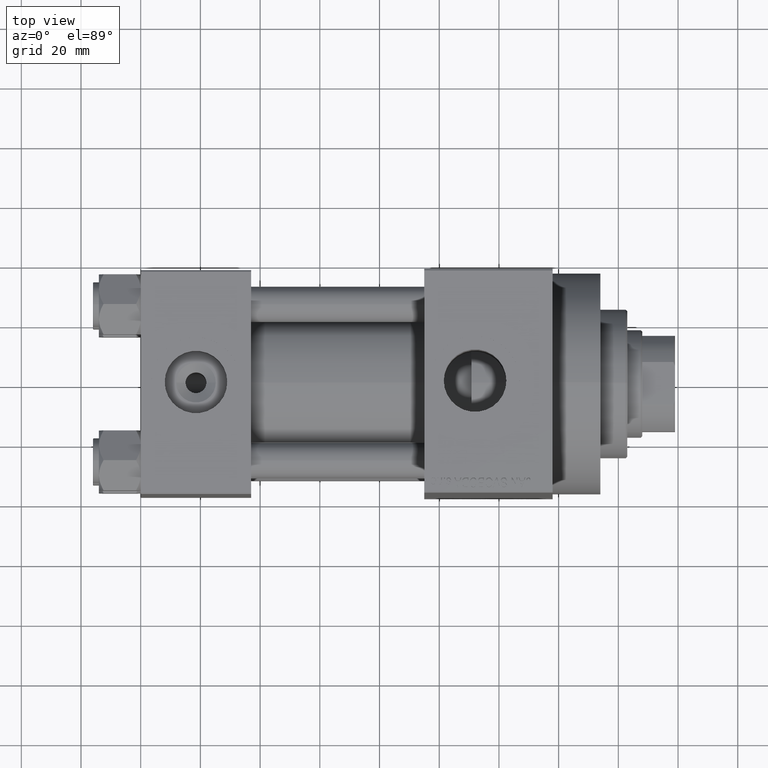
[diagram: clean part render]
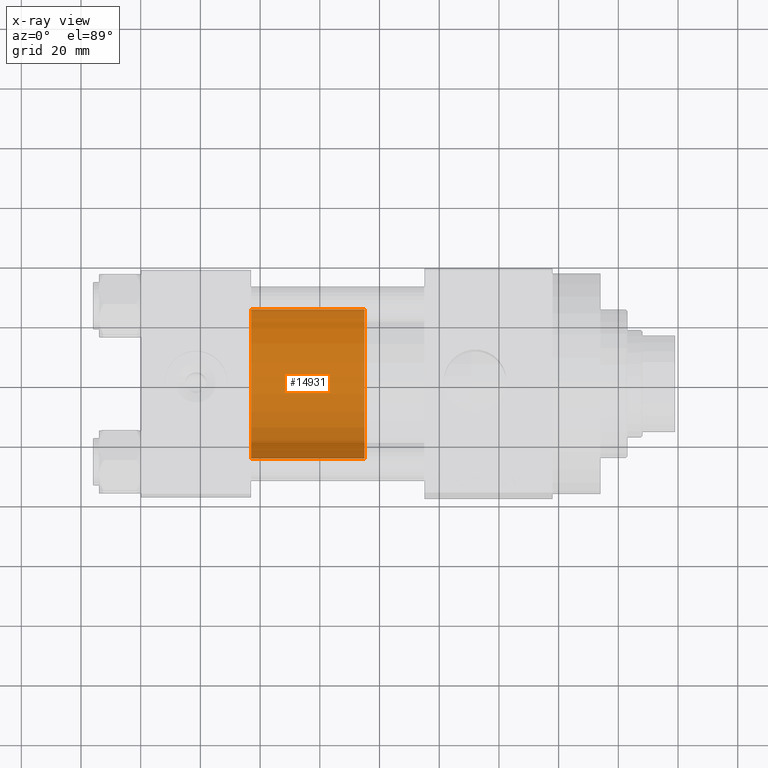
[diagram: x-ray — body ghosted, one internal face saturated and labeled with its STEP entity id]
A machine part, top view, then the same camera in x-ray: the body is ghosted and one INTERNAL B-rep face — a face not visible from any outside direction — is saturated and labeled: STEP entity #14931.
In plain terms, the highlighted cylindrical surface (partial cylindrical patch) has radius 25 mm, axis along (-1, 0, 0).
Its self-contained STEP definition (entity closure, byte-faithful):
#242 = DIRECTION ( 'NONE',  ( 1.000000000000000000, 0.000000000000000000, 0.000000000000000000 ) ) ;
#465 = ORIENTED_EDGE ( 'NONE', *, *, #46703, .F. ) ;
#584 = EDGE_CURVE ( 'NONE', #35228, #23645, #22574, .T. ) ;
#4075 = VECTOR ( 'NONE', #25242, 1000.000000000000000 ) ;
#6978 = ORIENTED_EDGE ( 'NONE', *, *, #20342, .T. ) ;
#7459 = DIRECTION ( 'NONE',  ( -1.000000000000000000, 0.000000000000000000, 0.000000000000000000 ) ) ;
#8287 = EDGE_CURVE ( 'NONE', #45854, #20348, #21189, .T. ) ;
#10318 = CARTESIAN_POINT ( 'NONE',  ( 0.000000000000000000, 0.000000000000000000, 38.00000000000000000 ) ) ;
#11081 = CARTESIAN_POINT ( 'NONE',  ( 0.000000000000000000, 0.000000000000000000, 38.00000000000000000 ) ) ;
#14931 = ADVANCED_FACE ( 'NONE', ( #25611 ), #32529, .T. ) ;
#15151 = CARTESIAN_POINT ( 'NONE',  ( 25.00000000000000000, 3.061616997868383043E-15, 38.00000000000000000 ) ) ;
#17599 = ORIENTED_EDGE ( 'NONE', *, *, #8287, .F. ) ;
#18364 = DIRECTION ( 'NONE',  ( 0.000000000000000000, 0.000000000000000000, 1.000000000000000000 ) ) ;
#19651 = DIRECTION ( 'NONE',  ( 0.000000000000000000, 0.000000000000000000, 1.000000000000000000 ) ) ;
#20342 = EDGE_CURVE ( 'NONE', #23645, #20348, #23527, .T. ) ;
#20348 = VERTEX_POINT ( 'NONE', #25306 ) ;
#20429 = EDGE_LOOP ( 'NONE', ( #465, #27028, #6978, #17599 ) ) ;
#21189 = LINE ( 'NONE', #46727, #4075 ) ;
#22574 = LINE ( 'NONE', #15151, #38301 ) ;
#23147 = CARTESIAN_POINT ( 'NONE',  ( 25.00000000000000000, 3.061616997868383043E-15, 0.000000000000000000 ) ) ;
#23527 = CIRCLE ( 'NONE', #28100, 25.00000000000000000 ) ;
#23645 = VERTEX_POINT ( 'NONE', #23147 ) ;
#25242 = DIRECTION ( 'NONE',  ( -0.000000000000000000, -0.000000000000000000, -1.000000000000000000 ) ) ;
#25306 = CARTESIAN_POINT ( 'NONE',  ( -25.00000000000000000, 0.000000000000000000, 0.000000000000000000 ) ) ;
#25611 = FACE_OUTER_BOUND ( 'NONE', #20429, .T. ) ;
#27028 = ORIENTED_EDGE ( 'NONE', *, *, #584, .T. ) ;
#28100 = AXIS2_PLACEMENT_3D ( 'NONE', #40581, #18364, #242 ) ;
#32236 = CIRCLE ( 'NONE', #46709, 25.00000000000000000 ) ;
#32288 = DIRECTION ( 'NONE',  ( -0.000000000000000000, -0.000000000000000000, -1.000000000000000000 ) ) ;
#32529 = CYLINDRICAL_SURFACE ( 'NONE', #39430, 25.00000000000000000 ) ;
#34446 = DIRECTION ( 'NONE',  ( 1.000000000000000000, 0.000000000000000000, 0.000000000000000000 ) ) ;
#35228 = VERTEX_POINT ( 'NONE', #42522 ) ;
#36909 = DIRECTION ( 'NONE',  ( -0.000000000000000000, -0.000000000000000000, -1.000000000000000000 ) ) ;
#38301 = VECTOR ( 'NONE', #36909, 1000.000000000000000 ) ;
#39430 = AXIS2_PLACEMENT_3D ( 'NONE', #10318, #32288, #7459 ) ;
#40581 = CARTESIAN_POINT ( 'NONE',  ( 0.000000000000000000, 0.000000000000000000, 0.000000000000000000 ) ) ;
#42522 = CARTESIAN_POINT ( 'NONE',  ( 25.00000000000000000, 3.061616997868383043E-15, 38.00000000000000000 ) ) ;
#44709 = CARTESIAN_POINT ( 'NONE',  ( -25.00000000000000000, 0.000000000000000000, 38.00000000000000000 ) ) ;
#45854 = VERTEX_POINT ( 'NONE', #44709 ) ;
#46703 = EDGE_CURVE ( 'NONE', #35228, #45854, #32236, .T. ) ;
#46709 = AXIS2_PLACEMENT_3D ( 'NONE', #11081, #19651, #34446 ) ;
#46727 = CARTESIAN_POINT ( 'NONE',  ( -25.00000000000000000, 0.000000000000000000, 38.00000000000000000 ) ) ;